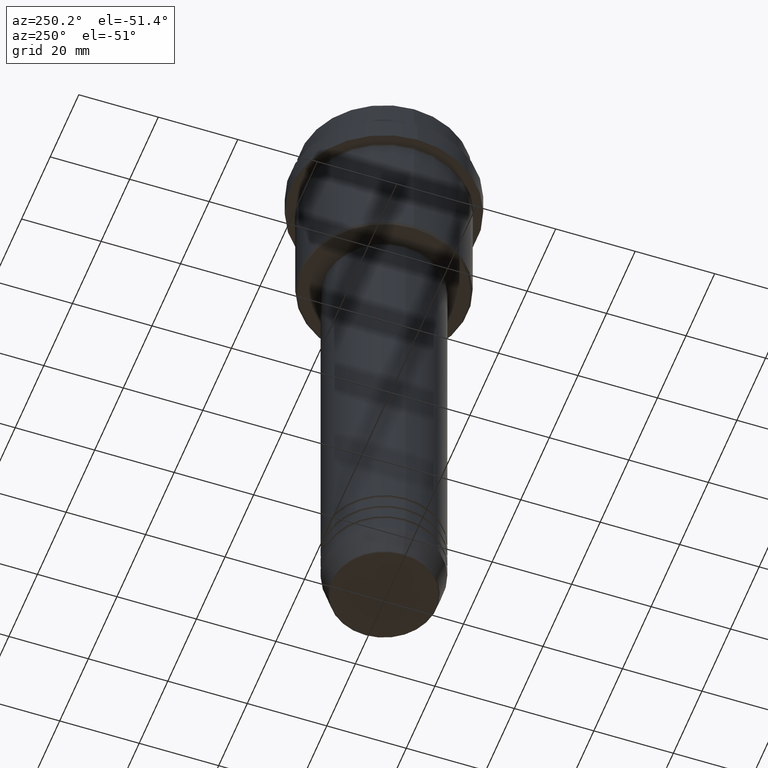
[diagram: clean part render]
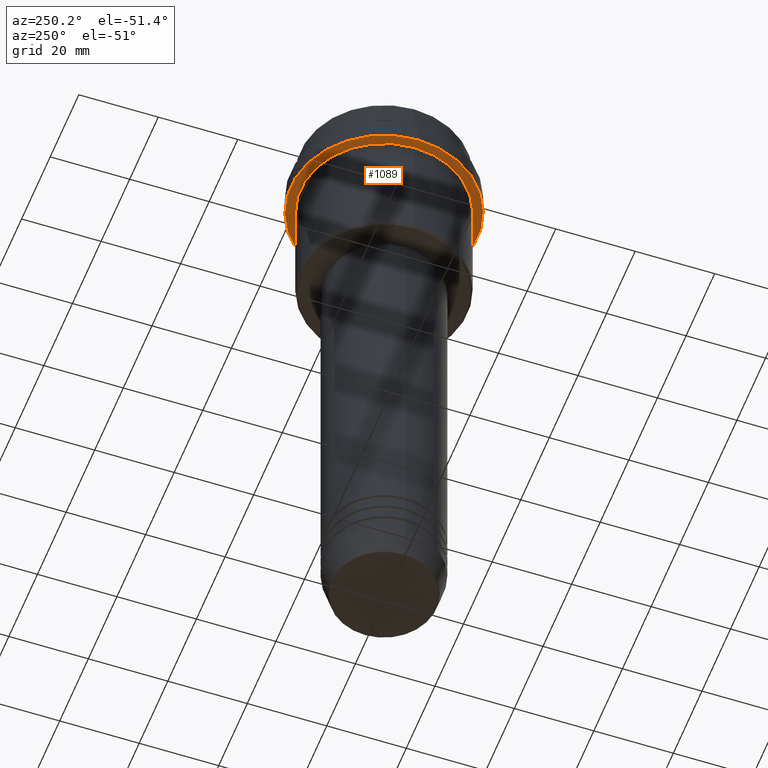
[diagram: same view with one face highlighted and labeled with its STEP entity id]
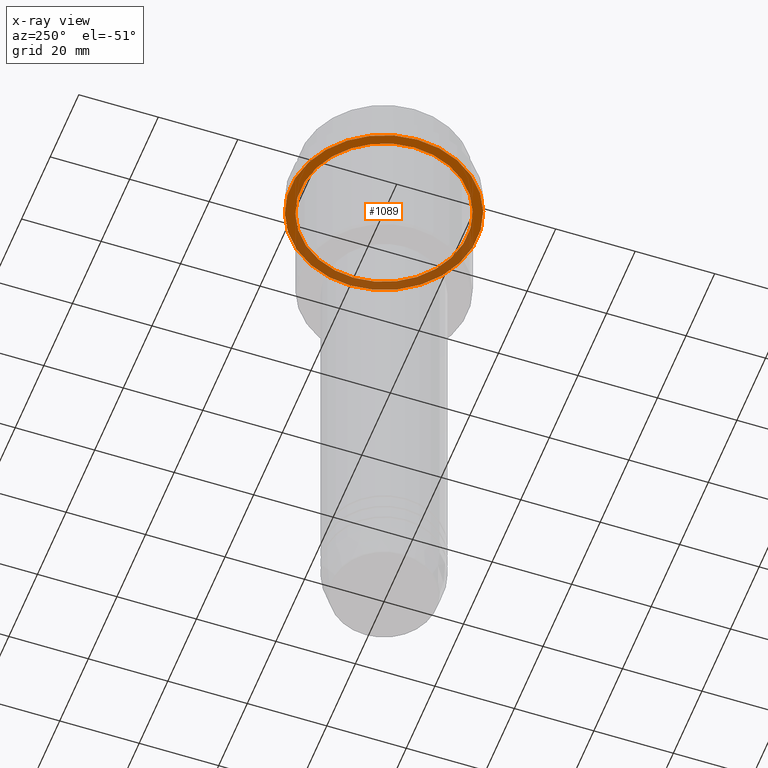
[diagram: x-ray of the same camera — body ghosted, the highlighted face saturated]
A machine part, auxiliary view. The second image highlights one B-rep face of the part: STEP entity #1089.
The next image is the same camera in x-ray: the body ghosted, the highlighted face saturated — about 39% of this face is hidden behind the body in this view.
In plain terms, the highlighted planar face has unit normal (0, 0, -1).
Its self-contained STEP definition (entity closure, byte-faithful):
#34 = CIRCLE ( 'NONE', #953, 20.99999999999999289 ) ;
#47 = VERTEX_POINT ( 'NONE', #1396 ) ;
#62 = DIRECTION ( 'NONE',  ( -0.000000000000000000, -0.000000000000000000, 1.000000000000000000 ) ) ;
#70 = CARTESIAN_POINT ( 'NONE',  ( 20.99999999999999289, 2.571758278209440872E-15, -15.00000000000000178 ) ) ;
#175 = AXIS2_PLACEMENT_3D ( 'NONE', #771, #1101, #1093 ) ;
#184 = CARTESIAN_POINT ( 'NONE',  ( 0.000000000000000000, 0.000000000000000000, -15.00000000000000000 ) ) ;
#275 = AXIS2_PLACEMENT_3D ( 'NONE', #184, #62, #844 ) ;
#301 = DIRECTION ( 'NONE',  ( -1.000000000000000000, 0.000000000000000000, 0.000000000000000000 ) ) ;
#304 = EDGE_CURVE ( 'NONE', #47, #1186, #705, .T. ) ;
#308 = DIRECTION ( 'NONE',  ( -0.000000000000000000, -0.000000000000000000, 1.000000000000000000 ) ) ;
#311 = CIRCLE ( 'NONE', #401, 20.99999999999999289 ) ;
#379 = CARTESIAN_POINT ( 'NONE',  ( 0.000000000000000000, 0.000000000000000000, -15.00000000000000000 ) ) ;
#401 = AXIS2_PLACEMENT_3D ( 'NONE', #415, #411, #301 ) ;
#409 = EDGE_CURVE ( 'NONE', #921, #1333, #34, .T. ) ;
#411 = DIRECTION ( 'NONE',  ( -0.000000000000000000, -0.000000000000000000, 1.000000000000000000 ) ) ;
#415 = CARTESIAN_POINT ( 'NONE',  ( 0.000000000000000000, 0.000000000000000000, -15.00000000000000178 ) ) ;
#416 = CARTESIAN_POINT ( 'NONE',  ( 0.000000000000000000, 0.000000000000000000, -15.00000000000000178 ) ) ;
#452 = CIRCLE ( 'NONE', #275, 23.50000000000000355 ) ;
#483 = DIRECTION ( 'NONE',  ( 1.000000000000000000, 0.000000000000000000, 0.000000000000000000 ) ) ;
#533 = DIRECTION ( 'NONE',  ( -1.000000000000000000, 0.000000000000000000, 0.000000000000000000 ) ) ;
#547 = AXIS2_PLACEMENT_3D ( 'NONE', #379, #905, #483 ) ;
#592 = ORIENTED_EDGE ( 'NONE', *, *, #304, .F. ) ;
#705 = CIRCLE ( 'NONE', #547, 23.50000000000000355 ) ;
#771 = CARTESIAN_POINT ( 'NONE',  ( 0.000000000000000000, 23.50000000000000355, -15.00000000000000178 ) ) ;
#844 = DIRECTION ( 'NONE',  ( 1.000000000000000000, 0.000000000000000000, 0.000000000000000000 ) ) ;
#892 = EDGE_CURVE ( 'NONE', #1333, #921, #311, .T. ) ;
#905 = DIRECTION ( 'NONE',  ( -0.000000000000000000, -0.000000000000000000, 1.000000000000000000 ) ) ;
#913 = EDGE_LOOP ( 'NONE', ( #993, #1137 ) ) ;
#921 = VERTEX_POINT ( 'NONE', #70 ) ;
#953 = AXIS2_PLACEMENT_3D ( 'NONE', #416, #308, #533 ) ;
#985 = FACE_OUTER_BOUND ( 'NONE', #1187, .T. ) ;
#993 = ORIENTED_EDGE ( 'NONE', *, *, #892, .T. ) ;
#1089 = ADVANCED_FACE ( 'NONE', ( #1105, #985 ), #1416, .T. ) ;
#1093 = DIRECTION ( 'NONE',  ( -1.000000000000000000, 0.000000000000000000, -0.000000000000000000 ) ) ;
#1101 = DIRECTION ( 'NONE',  ( 0.000000000000000000, 0.000000000000000000, -1.000000000000000000 ) ) ;
#1105 = FACE_BOUND ( 'NONE', #913, .T. ) ;
#1137 = ORIENTED_EDGE ( 'NONE', *, *, #409, .T. ) ;
#1178 = CARTESIAN_POINT ( 'NONE',  ( -20.99999999999999289, 0.000000000000000000, -15.00000000000000178 ) ) ;
#1186 = VERTEX_POINT ( 'NONE', #1345 ) ;
#1187 = EDGE_LOOP ( 'NONE', ( #1276, #592 ) ) ;
#1276 = ORIENTED_EDGE ( 'NONE', *, *, #1296, .F. ) ;
#1296 = EDGE_CURVE ( 'NONE', #1186, #47, #452, .T. ) ;
#1333 = VERTEX_POINT ( 'NONE', #1178 ) ;
#1345 = CARTESIAN_POINT ( 'NONE',  ( 23.50000000000000355, 0.000000000000000000, -15.00000000000000000 ) ) ;
#1396 = CARTESIAN_POINT ( 'NONE',  ( -23.50000000000000711, 2.877919977996281109E-15, -15.00000000000000000 ) ) ;
#1416 = PLANE ( 'NONE',  #175 ) ;